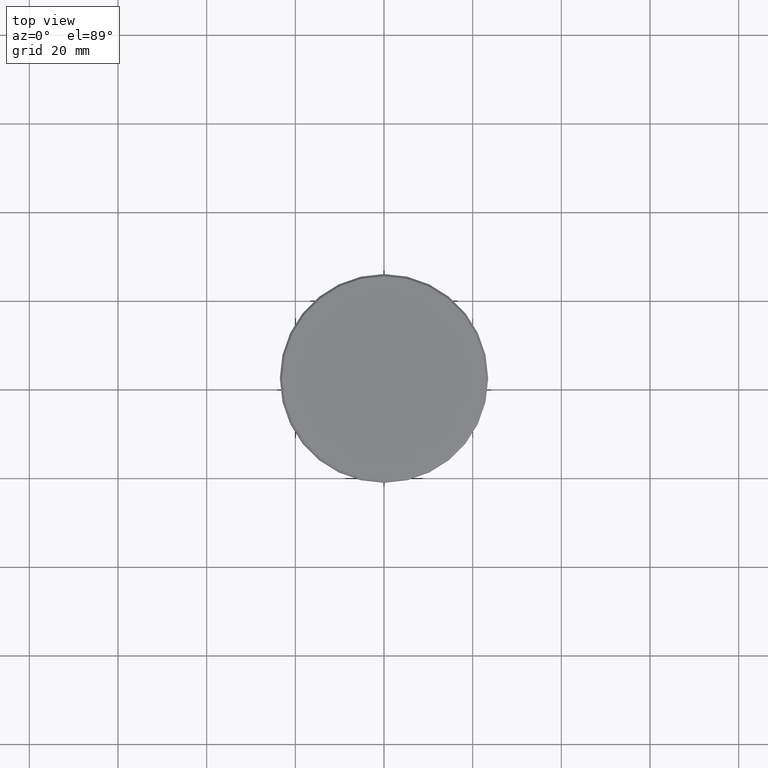
[diagram: clean part render]
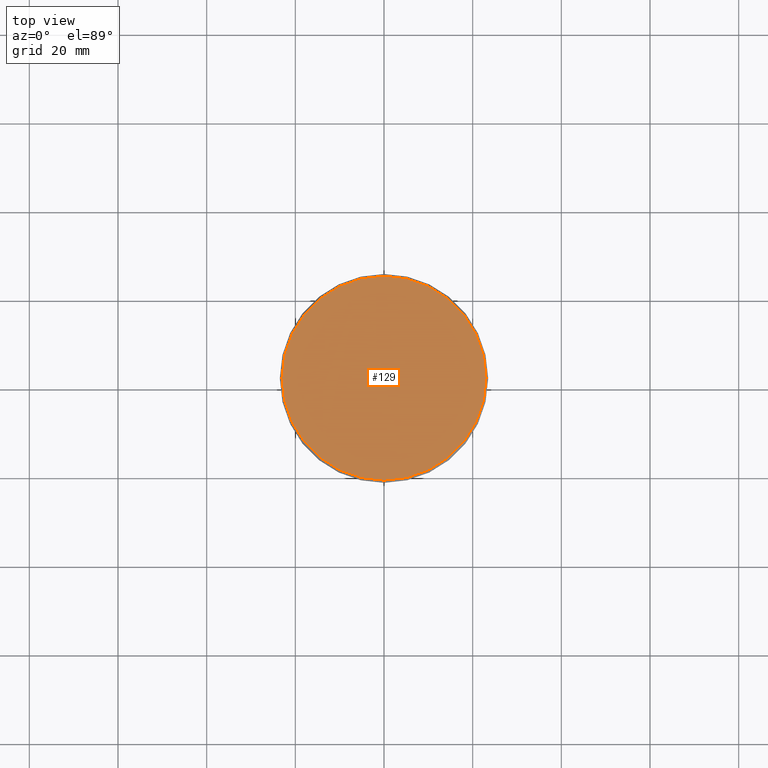
[diagram: same view with one face highlighted and labeled with its STEP entity id]
A machine part, top view. The second image highlights one B-rep face of the part: STEP entity #129.
In plain terms, the highlighted planar face has unit normal (0, -0, 1).
Its self-contained STEP definition (entity closure, byte-faithful):
#57 = DIRECTION ( 'NONE',  ( -0.000000000000000000, -0.000000000000000000, 1.000000000000000000 ) ) ;
#122 = CIRCLE ( 'NONE', #350, 22.99999999999999645 ) ;
#129 = ADVANCED_FACE ( 'NONE', ( #341 ), #793, .T. ) ;
#279 = DIRECTION ( 'NONE',  ( -0.000000000000000000, -0.000000000000000000, 1.000000000000000000 ) ) ;
#315 = DIRECTION ( 'NONE',  ( 1.000000000000000000, 0.000000000000000000, 0.000000000000000000 ) ) ;
#341 = FACE_OUTER_BOUND ( 'NONE', #979, .T. ) ;
#350 = AXIS2_PLACEMENT_3D ( 'NONE', #1128, #57, #315 ) ;
#369 = CARTESIAN_POINT ( 'NONE',  ( -22.99999999999999645, 0.000000000000000000, 0.000000000000000000 ) ) ;
#399 = VERTEX_POINT ( 'NONE', #369 ) ;
#424 = CIRCLE ( 'NONE', #1028, 22.99999999999999645 ) ;
#493 = AXIS2_PLACEMENT_3D ( 'NONE', #690, #1059, #823 ) ;
#517 = ORIENTED_EDGE ( 'NONE', *, *, #535, .T. ) ;
#535 = EDGE_CURVE ( 'NONE', #787, #399, #424, .T. ) ;
#604 = CARTESIAN_POINT ( 'NONE',  ( 22.99999999999999645, 2.847303808017596139E-15, 0.000000000000000000 ) ) ;
#690 = CARTESIAN_POINT ( 'NONE',  ( 0.000000000000000000, 0.000000000000000000, 0.000000000000000000 ) ) ;
#703 = EDGE_CURVE ( 'NONE', #399, #787, #122, .T. ) ;
#728 = DIRECTION ( 'NONE',  ( 1.000000000000000000, 0.000000000000000000, 0.000000000000000000 ) ) ;
#746 = CARTESIAN_POINT ( 'NONE',  ( 0.000000000000000000, 0.000000000000000000, 0.000000000000000000 ) ) ;
#787 = VERTEX_POINT ( 'NONE', #604 ) ;
#793 = PLANE ( 'NONE',  #493 ) ;
#823 = DIRECTION ( 'NONE',  ( 1.000000000000000000, 0.000000000000000000, 0.000000000000000000 ) ) ;
#903 = ORIENTED_EDGE ( 'NONE', *, *, #703, .T. ) ;
#979 = EDGE_LOOP ( 'NONE', ( #903, #517 ) ) ;
#1028 = AXIS2_PLACEMENT_3D ( 'NONE', #746, #279, #728 ) ;
#1059 = DIRECTION ( 'NONE',  ( 0.000000000000000000, -0.000000000000000000, 1.000000000000000000 ) ) ;
#1128 = CARTESIAN_POINT ( 'NONE',  ( 0.000000000000000000, 0.000000000000000000, 0.000000000000000000 ) ) ;